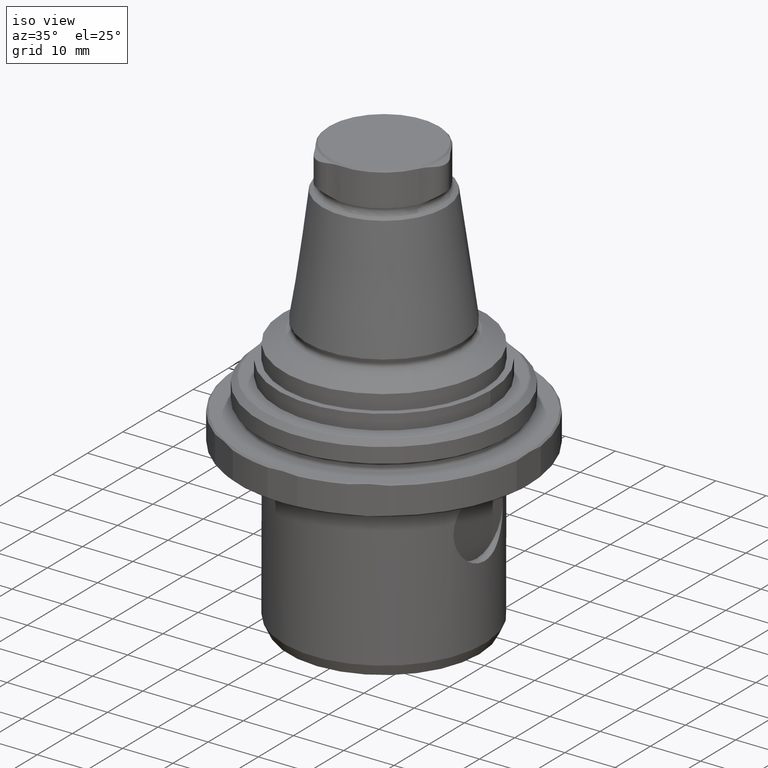
[diagram: clean part render]
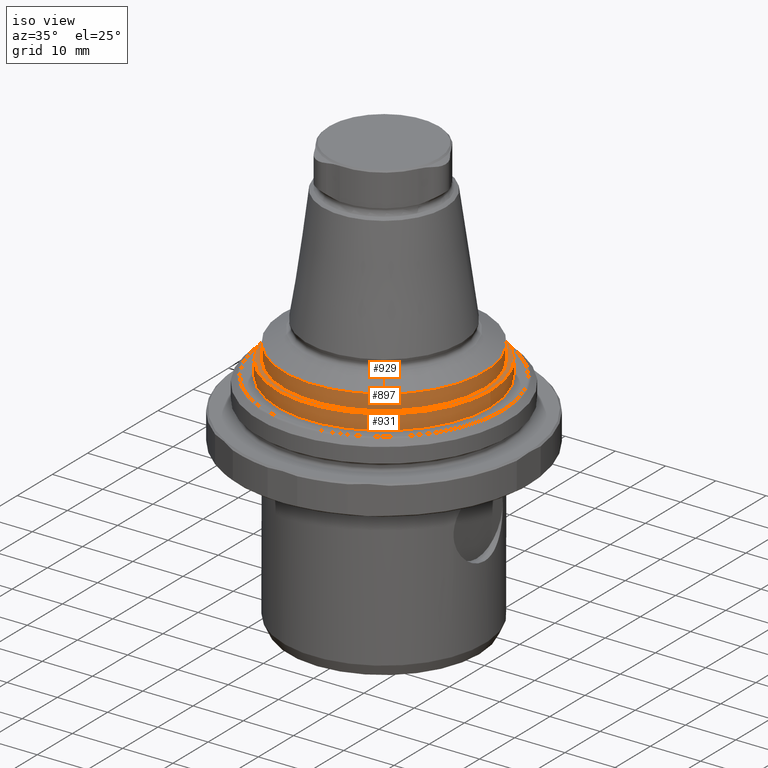
[diagram: same view with one multi-face feature highlighted, each face labeled with its STEP entity id]
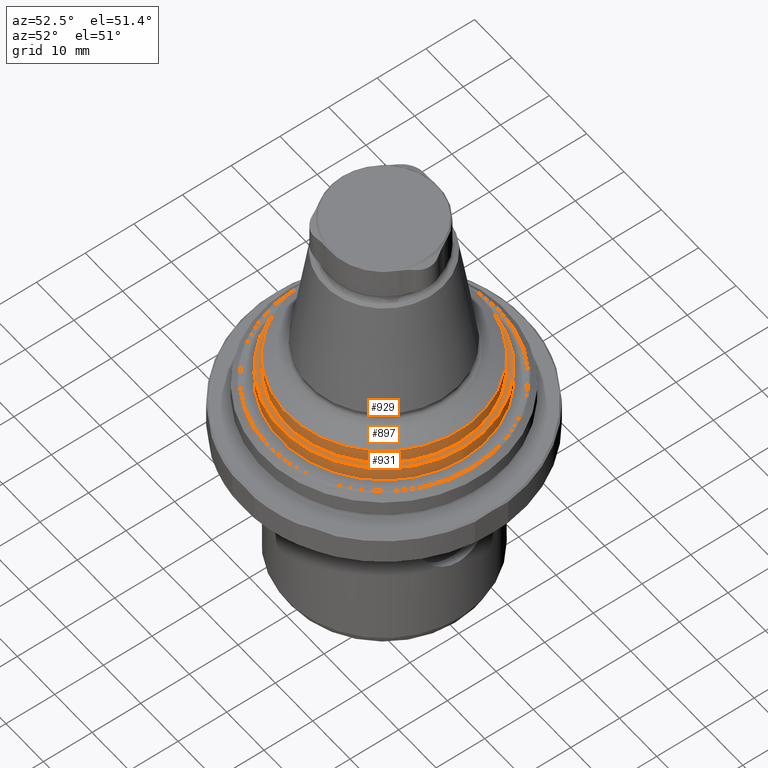
[diagram: same view with one multi-face feature highlighted, each face labeled with its STEP entity id]
A machine part, iso view. The highlighted faces form ONE feature: a stepped (counterbored) hole: 2 coaxial cylindrical walls of radii 20 -> 21.2 mm joined by 1 annular planar shoulder face(s). The faces share edges in the B-rep.
A second angle (auxiliary view) of the same feature is appended — it is thin or edge-on in the first view.
Their STEP definitions:
[1] entity #931 (Cylinder):
#281=ORIENTED_EDGE('',*,*,#468,.T.);
#282=ORIENTED_EDGE('',*,*,#470,.T.);
#468=EDGE_CURVE('',#575,#575,#648,.T.);
#470=EDGE_CURVE('',#577,#577,#650,.T.);
#575=VERTEX_POINT('',#1588);
#577=VERTEX_POINT('',#1594);
#648=CIRCLE('',#1035,21.2);
#650=CIRCLE('',#1039,21.2);
#726=EDGE_LOOP('',(#281));
#727=EDGE_LOOP('',(#282));
#822=FACE_BOUND('',#726,.T.);
#823=FACE_BOUND('',#727,.T.);
#884=CYLINDRICAL_SURFACE('',#1038,21.2);
#931=ADVANCED_FACE('',(#822,#823),#884,.T.);
#1035=AXIS2_PLACEMENT_3D('',#1587,#1229,#1230);
#1038=AXIS2_PLACEMENT_3D('',#1592,#1235,#1236);
#1039=AXIS2_PLACEMENT_3D('',#1593,#1237,#1238);
#1229=DIRECTION('',(-5.5264198129461E-16,6.90472036344684E-17,-1.));
#1230=DIRECTION('',(-1.,9.77164313006873E-16,5.58279830278911E-16));
#1235=DIRECTION('',(5.5264198129461E-16,-7.81688594334958E-18,1.));
#1236=DIRECTION('',(1.,-9.77164313006873E-16,-5.58279830278911E-16));
#1237=DIRECTION('',(5.5264198129461E-16,5.34134317477693E-17,1.));
#1238=DIRECTION('',(1.,-9.77164313006873E-16,-5.58279830278911E-16));
#1587=CARTESIAN_POINT('',(-8.39555133708712E-14,-9.81879857665345E-14,8.00407078564789));
#1588=CARTESIAN_POINT('',(-21.2000000000001,-7.74721023307888E-14,8.0040707856479));
#1592=CARTESIAN_POINT('',(-8.47844763428131E-14,-9.81762604376195E-14,6.50407078564789));
#1593=CARTESIAN_POINT('',(-8.56134393147551E-14,-9.81645351087045E-14,5.00407078564789));
#1594=CARTESIAN_POINT('',(21.1999999999999,-1.1888041854445E-13,5.00407078564788));
[2] entity #897 (Cylinder):
#156=ORIENTED_EDGE('',*,*,#406,.T.);
#157=ORIENTED_EDGE('',*,*,#407,.F.);
#406=EDGE_CURVE('',#531,#531,#622,.T.);
#407=EDGE_CURVE('',#532,#532,#623,.F.);
#531=VERTEX_POINT('',#1372);
#532=VERTEX_POINT('',#1374);
#622=CIRCLE('',#977,20.);
#623=CIRCLE('',#978,20.);
#677=EDGE_LOOP('',(#156));
#678=EDGE_LOOP('',(#157));
#773=FACE_BOUND('',#677,.T.);
#774=FACE_BOUND('',#678,.T.);
#869=CYLINDRICAL_SURFACE('',#976,20.);
#897=ADVANCED_FACE('',(#773,#774),#869,.T.);
#976=AXIS2_PLACEMENT_3D('',#1370,#1099,#1100);
#977=AXIS2_PLACEMENT_3D('',#1371,#1101,#1102);
#978=AXIS2_PLACEMENT_3D('',#1373,#1103,#1104);
#1099=DIRECTION('',(-4.20111564119382E-16,-8.51929323965368E-24,-1.));
#1100=DIRECTION('',(-1.,9.77164313006873E-16,4.20111561806759E-16));
#1101=DIRECTION('',(-4.20111564119382E-16,-8.51929323965368E-24,-1.));
#1102=DIRECTION('',(-1.,9.77164313006873E-16,4.20111561806759E-16));
#1103=DIRECTION('',(5.5264198129461E-16,-6.90472036344684E-17,1.));
#1104=DIRECTION('',(1.,0.,-5.5264198129461E-16));
#1370=CARTESIAN_POINT('',(-6.77586978396813E-14,-9.81645347466345E-14,47.5040707856479));
#1371=CARTESIAN_POINT('',(-8.30927699300388E-14,-9.81645350575887E-14,11.0040707856479));
#1372=CARTESIAN_POINT('',(-20.0000000000001,-7.86212487974513E-14,11.0040707856479));
#1373=CARTESIAN_POINT('',(-8.43531046223969E-14,-9.81645350831466E-14,8.00407078564789));
#1374=CARTESIAN_POINT('',(19.9999999999999,-9.81645350831466E-14,8.00407078564788));
[3] entity #929 (Plane):
#140=PLANE('',#1034);
#277=ORIENTED_EDGE('',*,*,#468,.F.);
#278=ORIENTED_EDGE('',*,*,#407,.T.);
#407=EDGE_CURVE('',#532,#532,#623,.F.);
#468=EDGE_CURVE('',#575,#575,#648,.T.);
#532=VERTEX_POINT('',#1374);
#575=VERTEX_POINT('',#1588);
#623=CIRCLE('',#978,20.);
#648=CIRCLE('',#1035,21.2);
#722=EDGE_LOOP('',(#277));
#723=EDGE_LOOP('',(#278));
#818=FACE_BOUND('',#722,.T.);
#819=FACE_BOUND('',#723,.T.);
#929=ADVANCED_FACE('',(#818,#819),#140,.T.);
#978=AXIS2_PLACEMENT_3D('',#1373,#1103,#1104);
#1034=AXIS2_PLACEMENT_3D('',#1586,#1227,#1228);
#1035=AXIS2_PLACEMENT_3D('',#1587,#1229,#1230);
#1103=DIRECTION('',(5.5264198129461E-16,-6.90472036344684E-17,1.));
#1104=DIRECTION('',(1.,0.,-5.5264198129461E-16));
#1227=DIRECTION('',(5.5264198129461E-16,-6.90472036344684E-17,1.));
#1228=DIRECTION('',(-3.55103316543315E-16,1.,6.90471738482395E-17));
#1229=DIRECTION('',(-5.5264198129461E-16,6.90472036344684E-17,-1.));
#1230=DIRECTION('',(-1.,9.77164313006873E-16,5.58279830278911E-16));
#1373=CARTESIAN_POINT('',(-8.43531046223969E-14,-9.81645350831466E-14,8.00407078564789));
#1374=CARTESIAN_POINT('',(19.9999999999999,-9.81645350831466E-14,8.00407078564788));
#1586=CARTESIAN_POINT('',(-8.39555133708712E-14,-9.81879857665345E-14,8.00407078564789));
#1587=CARTESIAN_POINT('',(-8.39555133708712E-14,-9.81879857665345E-14,8.00407078564789));
#1588=CARTESIAN_POINT('',(-21.2000000000001,-7.74721023307888E-14,8.0040707856479));